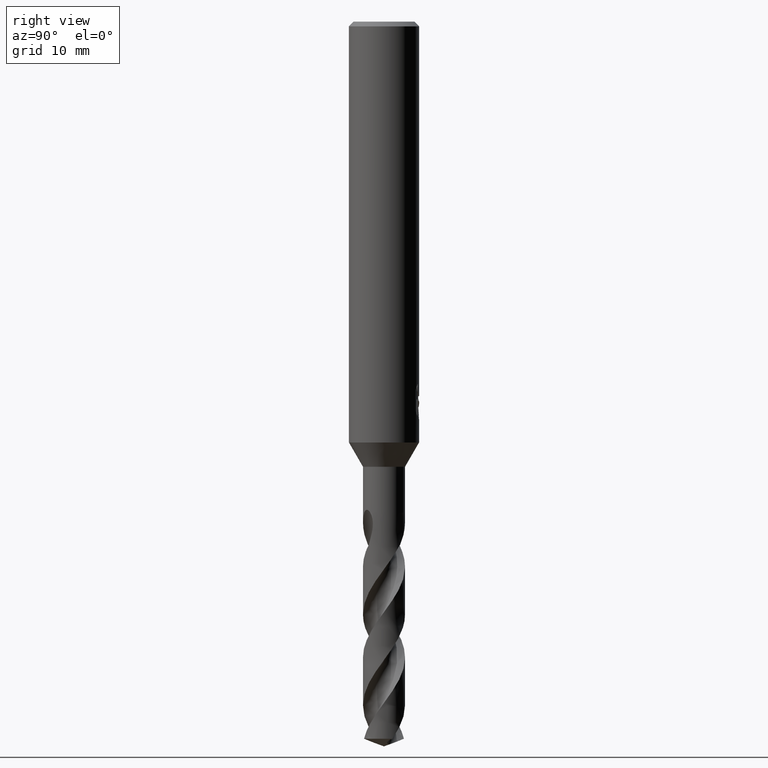
[diagram: clean part render]
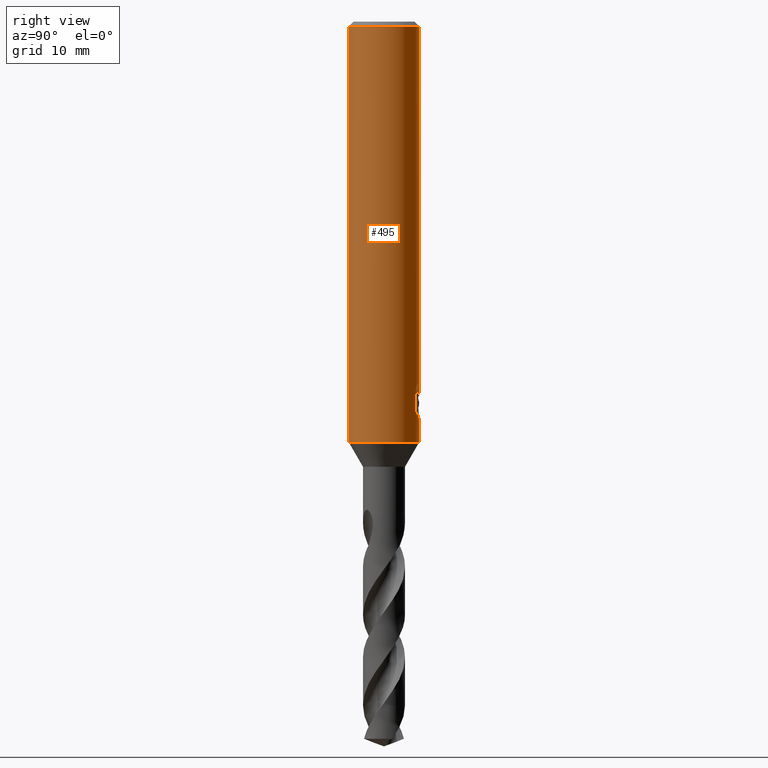
[diagram: same view with one face highlighted and labeled with its STEP entity id]
A machine part, right view. The second image highlights one B-rep face of the part: STEP entity #495.
In plain terms, the highlighted cylindrical surface (edge-blend (fillet) strip) has radius 3 mm, axis along (-0, -0, 1).
Its self-contained STEP definition (entity closure, byte-faithful):
#271=VERTEX_POINT('',#762);
#279=EDGE_CURVE('',#641,#293,#771,.T.);
#285=VERTEX_POINT('',#777);
#293=VERTEX_POINT('',#785);
#295=VERTEX_POINT('',#787);
#319=EDGE_CURVE('',#507,#295,#812,.T.);
#333=EDGE_CURVE('',#271,#295,#831,.T.);
#349=EDGE_CURVE('',#657,#641,#848,.T.);
#359=EDGE_CURVE('',#691,#657,#859,.T.);
#363=VERTEX_POINT('',#863);
#393=VERTEX_POINT('',#897);
#423=EDGE_CURVE('',#271,#293,#929,.T.);
#475=EDGE_CURVE('',#393,#517,#986,.T.);
#495=ADVANCED_FACE('',(#1008),#1009,.T.);
#507=VERTEX_POINT('',#1022);
#517=VERTEX_POINT('',#1032);
#549=EDGE_CURVE('',#691,#569,#1066,.T.);
#569=VERTEX_POINT('',#1087);
#577=EDGE_CURVE('',#363,#507,#1096,.T.);
#589=EDGE_CURVE('',#517,#285,#1109,.T.);
#603=EDGE_CURVE('',#285,#363,#1124,.T.);
#641=VERTEX_POINT('',#1164);
#657=VERTEX_POINT('',#1182);
#691=VERTEX_POINT('',#1220);
#737=EDGE_CURVE('',#569,#393,#1272,.T.);
#762=CARTESIAN_POINT('',(0.0,3.0,-0.399999999999999));
#771=LINE('',#1299,#1300);
#777=CARTESIAN_POINT('',(1.33721006514658,2.68549236485056,-33.2901657003257));
#785=CARTESIAN_POINT('',(3.67381906146713E-016,-3.0,-0.399999999999999));
#787=CARTESIAN_POINT('',(-1.20768269592175E-015,3.0,-32.0232688117743));
#812=B_SPLINE_CURVE_WITH_KNOTS('',3,(#2142,#2143,#2144,#2145,#2146,#2147,#2148,#2149,#2150,#2151,#2152,#2153,#2154,#2155,#2156,#2157,#2158,#2159,#2160,#2161,#2162,#2163,#2164,#2165,#2166,#2167,#2168),.UNSPECIFIED.,.F.,.F.,(4,2,3,2,2,2,2,2,2,2,2,2,4),(-0.54422824842136,-0.27211412421068,0.0,0.272114124210678,0.544228248421357,0.817906359646673,1.09158447087199,1.36255924571499,1.63353402055798,1.90530456554772,2.17707511053746,2.4488456555272,2.72061620051693),.UNSPECIFIED.);
#831=LINE('',#2202,#2203);
#848=CIRCLE('',#2229,3.0);
#859=LINE('',#2241,#2242);
#863=CARTESIAN_POINT('',(1.33721006514658,2.68549236485057,-31.5150484364821));
#897=CARTESIAN_POINT('',(0.873560781758957,2.86999852971612,-32.3198931596091));
#929=CIRCLE('',#2450,3.0);
#986=LINE('',#2686,#2687);
#1008=FACE_OUTER_BOUND('',#2753,.T.);
#1009=CYLINDRICAL_SURFACE('',#2754,3.0);
#1022=CARTESIAN_POINT('',(0.799431726384364,2.89152363207533,-31.000000276873));
#1032=CARTESIAN_POINT('',(0.873560781758956,2.86999852971612,-33.7587351791531));
#1066=B_SPLINE_CURVE_WITH_KNOTS('',3,(#3078,#3079,#3080,#3081,#3082,#3083,#3084,#3085,#3086,#3087,#3088,#3089,#3090,#3091,#3092,#3093),.UNSPECIFIED.,.F.,.F.,(4,2,2,2,2,2,2,4),(5.66023402257373,6.29060333517104,6.60504483258975,6.91948633000846,7.23392782742717,7.54836932484587,7.86141901111221,8.17446869737855),.UNSPECIFIED.);
#1087=CARTESIAN_POINT('',(0.29010312703583,2.98594041730307,-33.9998328990228));
#1096=B_SPLINE_CURVE_WITH_KNOTS('',3,(#3331,#3332,#3333,#3334,#3335,#3336,#3337,#3338),.UNSPECIFIED.,.F.,.F.,(4,2,2,4),(0.629580638580865,1.25916127716173,1.57221094126725,1.88526060537277),.UNSPECIFIED.);
#1109=B_SPLINE_CURVE_WITH_KNOTS('',3,(#3355,#3356,#3357,#3358,#3359,#3360,#3361,#3362),.UNSPECIFIED.,.F.,.F.,(4,2,2,4),(8.17446522132897,8.48751487521068,8.80056452909238,9.43014514523744),.UNSPECIFIED.);
#1124=LINE('',#3437,#3438);
#1164=CARTESIAN_POINT('',(3.67381906146713E-016,-3.0,-36.0));
#1182=CARTESIAN_POINT('',(0.0,3.0,-36.0));
#1220=CARTESIAN_POINT('',(-2.46407913303377E-016,3.0,-34.0310253601033));
#1272=ELLIPSE('',#5167,9.14398372010932,3.0);
#1299=CARTESIAN_POINT('',(3.67381906146713E-016,-3.0,-18.2));
#1300=VECTOR('',#5183,1.0);
#2142=CARTESIAN_POINT('',(0.665621182276714,2.92522622060321,-30.8140957881762));
#2143=CARTESIAN_POINT('',(0.728850563417096,2.91083867849353,-30.877518087557));
#2144=CARTESIAN_POINT('',(0.783900459387161,2.89602337967411,-30.9578702196133));
#2145=CARTESIAN_POINT('',(0.857188692916628,2.87518328740958,-31.1345580124299));
#2146=CARTESIAN_POINT('',(0.875400981188567,2.86943777108584,-31.2309373045166));
#2147=CARTESIAN_POINT('',(0.875400981188567,2.86943777108584,-31.3216420125868));
#2148=CARTESIAN_POINT('',(0.875400981188567,2.86943777108584,-31.412346720657));
#2149=CARTESIAN_POINT('',(0.857188692916629,2.87518328740958,-31.5087260127437));
#2150=CARTESIAN_POINT('',(0.783900459387161,2.89602337967411,-31.6854138055602));
#2151=CARTESIAN_POINT('',(0.728850563417096,2.91083867849353,-31.7657659376165));
#2152=CARTESIAN_POINT('',(0.60202838769231,2.93969645569731,-31.8929750586276));
#2153=CARTESIAN_POINT('',(0.5214778595293,2.95568533572518,-31.9483797636259));
#2154=CARTESIAN_POINT('',(0.34429909105015,2.98152194310932,-32.0221641076746));
#2155=CARTESIAN_POINT('',(0.247628172090375,2.99115403786358,-32.0405166027747));
#2156=CARTESIAN_POINT('',(0.0663244946631877,3.00062654348629,-32.0405166027747));
#2157=CARTESIAN_POINT('',(-0.0299285908853379,3.00115720326599,-32.0224875186921));
#2158=CARTESIAN_POINT('',(-0.206881310600538,2.99416773126077,-31.949244373347));
#2159=CARTESIAN_POINT('',(-0.287593937381961,2.98687212067831,-31.8940404490632));
#2160=CARTESIAN_POINT('',(-0.415200117492864,2.97182576996222,-31.7666805419979));
#2161=CARTESIAN_POINT('',(-0.470604049431396,2.96309385107775,-31.6859121102136));
#2162=CARTESIAN_POINT('',(-0.544183869965539,2.95046729924835,-31.5086992019516));
#2163=CARTESIAN_POINT('',(-0.562348199187247,2.94682278104247,-31.41223219425));
#2164=CARTESIAN_POINT('',(-0.562348199187247,2.94682278104247,-31.2310518309235));
#2165=CARTESIAN_POINT('',(-0.54418386996554,2.95046729924835,-31.134584823222));
#2166=CARTESIAN_POINT('',(-0.4706040494314,2.96309385107775,-30.95737191496));
#2167=CARTESIAN_POINT('',(-0.415200117492863,2.97182576996222,-30.8766034831756));
#2168=CARTESIAN_POINT('',(-0.351303479704285,2.97935997575782,-30.812830162452));
#2202=CARTESIAN_POINT('',(-3.67381906146713E-016,3.0,-18.2));
#2203=VECTOR('',#5246,1.0);
#2229=AXIS2_PLACEMENT_3D('',#5264,#5265,#5266);
#2241=CARTESIAN_POINT('',(-3.67381906146713E-016,3.0,-18.2));
#2242=VECTOR('',#5275,1.0);
#2450=AXIS2_PLACEMENT_3D('',#5344,#5345,#5346);
#2686=CARTESIAN_POINT('',(0.873560781758957,2.86999852971612,-33.0393141693811));
#2687=VECTOR('',#5423,1.0);
#2753=EDGE_LOOP('',(#5454,#5455,#5456,#5457,#5458,#5459,#5460,#5461,#5462,#5463,#5464,#5465));
#2754=AXIS2_PLACEMENT_3D('',#5466,#5467,#5468);
#3078=CARTESIAN_POINT('',(-1.53050642192579,2.58022287650581,-33.0319811255889));
#3079=CARTESIAN_POINT('',(-1.44691631248335,2.62980577312329,-33.2314887010961));
#3080=CARTESIAN_POINT('',(-1.32276760444366,2.69707077181617,-33.4113258593841));
#3081=CARTESIAN_POINT('',(-1.10973155101076,2.78826898930335,-33.6245951706909));
#3082=CARTESIAN_POINT('',(-1.02948996220254,2.81934349084513,-33.6916117853674));
#3083=CARTESIAN_POINT('',(-0.853932698223484,2.87738531454781,-33.8105216600777));
#3084=CARTESIAN_POINT('',(-0.758609991487907,2.90431263574779,-33.8624240602539));
#3085=CARTESIAN_POINT('',(-0.558469552260235,2.94934446690523,-33.9464055954533));
#3086=CARTESIAN_POINT('',(-0.453457041446381,2.96746268462387,-33.9785511641911));
#3087=CARTESIAN_POINT('',(-0.240810292537893,2.99223469602914,-34.0209924679526));
#3088=CARTESIAN_POINT('',(-0.133171317626829,2.99887501234033,-34.0312723335086));
#3089=CARTESIAN_POINT('',(0.0759830626177195,3.00085245803086,-34.0312723335086));
#3090=CARTESIAN_POINT('',(0.183273473896684,2.99629272230549,-34.0210815541729));
#3091=CARTESIAN_POINT('',(0.39543915272815,2.97573303917486,-33.9788816901513));
#3092=CARTESIAN_POINT('',(0.500318639064909,2.95974677710468,-33.9468871509919));
#3093=CARTESIAN_POINT('',(0.600330982089903,2.93932011049205,-33.9050368602192));
#3331=CARTESIAN_POINT('',(1.47371594887933,2.61307506628086,-31.7730763684241));
#3332=CARTESIAN_POINT('',(1.38997410067862,2.66030349611674,-31.5732652606136));
#3333=CARTESIAN_POINT('',(1.2654392594963,2.72440179761724,-31.3929794688919));
#3334=CARTESIAN_POINT('',(1.05168354029617,2.81066216411606,-31.1794481382038));
#3335=CARTESIAN_POINT('',(0.971352579549231,2.83988055521709,-31.1125077441098));
#3336=CARTESIAN_POINT('',(0.795685568183073,2.89401656493242,-30.9938021282019));
#3337=CARTESIAN_POINT('',(0.700343019183212,2.91889351702519,-30.9420279807093));
#3338=CARTESIAN_POINT('',(0.600330681290245,2.93932017192779,-30.9001776926585));
#3355=CARTESIAN_POINT('',(0.600330703923335,2.93932016730517,-33.9050364278969));
#3356=CARTESIAN_POINT('',(0.700343038443484,2.91889351228921,-33.8631861412044));
#3357=CARTESIAN_POINT('',(0.795685584213131,2.8940165604303,-33.8114119954011));
#3358=CARTESIAN_POINT('',(0.971352589628262,2.83988055167306,-33.692706383359));
#3359=CARTESIAN_POINT('',(1.0516835476539,2.81066216129401,-33.6257659914415));
#3360=CARTESIAN_POINT('',(1.26543925920527,2.72440179743877,-33.4122346680481));
#3361=CARTESIAN_POINT('',(1.3899740959159,2.66030349847411,-33.2319488826214));
#3362=CARTESIAN_POINT('',(1.47371594109741,2.61307507066968,-33.0321377817991));
#3437=CARTESIAN_POINT('',(1.33721006514658,2.68549236485056,-32.4026070684039));
#3438=VECTOR('',#5570,1.0);
#5167=AXIS2_PLACEMENT_3D('',#5747,#5748,#5749);
#5183=DIRECTION('',(-0.0,-0.0,1.0));
#5246=DIRECTION('',(0.0,0.0,-1.0));
#5264=CARTESIAN_POINT('',(0.0,0.0,-36.0));
#5265=DIRECTION('',(0.0,0.0,-1.0));
#5266=DIRECTION('',(0.0,1.0,0.0));
#5275=DIRECTION('',(0.0,0.0,-1.0));
#5344=CARTESIAN_POINT('',(0.0,0.0,-0.399999999999999));
#5345=DIRECTION('',(0.0,0.0,-1.0));
#5346=DIRECTION('',(0.0,1.0,0.0));
#5423=DIRECTION('',(0.0,0.0,-1.0));
#5454=ORIENTED_EDGE('',*,*,#333,.F.);
#5455=ORIENTED_EDGE('',*,*,#423,.T.);
#5456=ORIENTED_EDGE('',*,*,#279,.F.);
#5457=ORIENTED_EDGE('',*,*,#349,.F.);
#5458=ORIENTED_EDGE('',*,*,#359,.F.);
#5459=ORIENTED_EDGE('',*,*,#549,.T.);
#5460=ORIENTED_EDGE('',*,*,#737,.T.);
#5461=ORIENTED_EDGE('',*,*,#475,.T.);
#5462=ORIENTED_EDGE('',*,*,#589,.T.);
#5463=ORIENTED_EDGE('',*,*,#603,.T.);
#5464=ORIENTED_EDGE('',*,*,#577,.T.);
#5465=ORIENTED_EDGE('',*,*,#319,.T.);
#5466=CARTESIAN_POINT('',(0.0,0.0,-18.2));
#5467=DIRECTION('',(-0.0,-0.0,1.0));
#5468=DIRECTION('',(0.0,1.0,0.0));
#5570=DIRECTION('',(-0.0,-0.0,1.0));
#5747=CARTESIAN_POINT('',(0.0,0.0,-34.8351219173269));
#5748=DIRECTION('',(0.944648353914092,0.0,-0.328084573619969));
#5749=DIRECTION('',(0.328084573619969,-0.0,0.944648353914092));